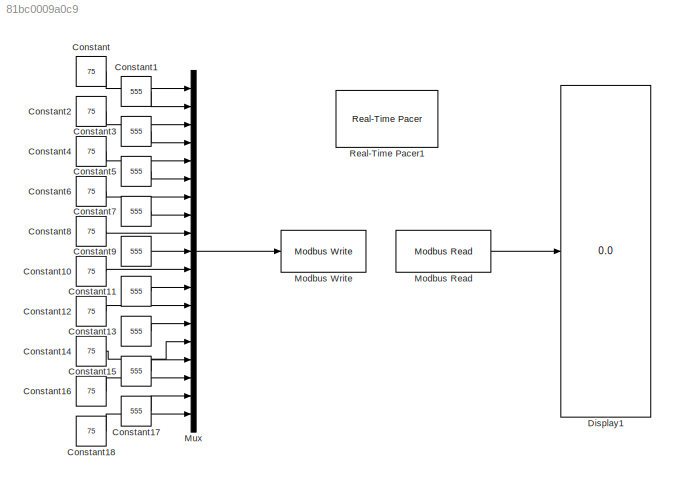
MODEL slx_81bc0009a0c9
KIND model
CONFIG AbsTol = auto
CONFIG EnableMultiTasking = off
CONFIG FixedStep = 1
CONFIG MaxStep = 0.2
CONFIG MinStep = auto
CONFIG RelTol = 1e-3
CONFIG SampleTimeConstraint = Unconstrained
CONFIG Solver = FixedStepDiscrete
CONFIG SolverName = FixedStepDiscrete
CONFIG StartTime = 0.0
CONFIG StopTime = inf
BLOCK [Constant] Constant
  Value = 75
BLOCK [Constant] Constant1
  Value = 555
BLOCK [Constant] Constant10
  Value = 75
BLOCK [Constant] Constant11
  Value = 555
BLOCK [Constant] Constant12
  Value = 75
BLOCK [Constant] Constant13
  Value = 555
BLOCK [Constant] Constant14
  Value = 75
BLOCK [Constant] Constant15
  Value = 555
BLOCK [Constant] Constant16
  Value = 75
BLOCK [Constant] Constant17
  Value = 555
BLOCK [Constant] Constant18
  Value = 75
BLOCK [Constant] Constant2
  Value = 75
BLOCK [Constant] Constant3
  Value = 555
BLOCK [Constant] Constant4
  Value = 75
BLOCK [Constant] Constant5
  Value = 555
BLOCK [Constant] Constant6
  Value = 75
BLOCK [Constant] Constant7
  Value = 555
BLOCK [Constant] Constant8
  Value = 75
BLOCK [Constant] Constant9
  Value = 555
BLOCK [Display] Display1
  Decimation = 1
  Format = long
  Ports = [1]
BLOCK [Reference] Modbus Read  REF=modbusMatLib/Modbus Read
  Ports = [0, 1]
  SourceBlock = modbusMatLib/Modbus Read
  SourceType = Modbus Read
BLOCK [Reference] Modbus Write  REF=modbusMatLib/Modbus Write
  Ports = [1]
  SourceBlock = modbusMatLib/Modbus Write
  SourceType = Modbus Write
BLOCK [Mux] Mux
  DisplayOption = bar
  Inputs = 19
  Ports = [19, 1]
BLOCK [Reference] Real-Time Pacer1  REF=realtime_pacer_lib/Real-Time Pacer
  Ports = []
  SourceBlock = realtime_pacer_lib/Real-Time Pacer
  SourceType = RealTime_Pacer
LINE Constant10:1 -> Mux:11
LINE Constant11:1 -> Mux:12
LINE Constant12:1 -> Mux:13
LINE Constant13:1 -> Mux:14
LINE Constant14:1 -> Mux:15
LINE Constant15:1 -> Mux:16
LINE Constant16:1 -> Mux:17
LINE Constant17:1 -> Mux:18
LINE Constant18:1 -> Mux:19
LINE Constant1:1 -> Mux:2
LINE Constant2:1 -> Mux:3
LINE Constant3:1 -> Mux:4
LINE Constant4:1 -> Mux:5
LINE Constant5:1 -> Mux:6
LINE Constant6:1 -> Mux:7
LINE Constant7:1 -> Mux:8
LINE Constant8:1 -> Mux:9
LINE Constant9:1 -> Mux:10
LINE Constant:1 -> Mux:1
LINE Modbus Read:1 -> Display1:1
LINE Mux:1 -> Modbus Write:1
